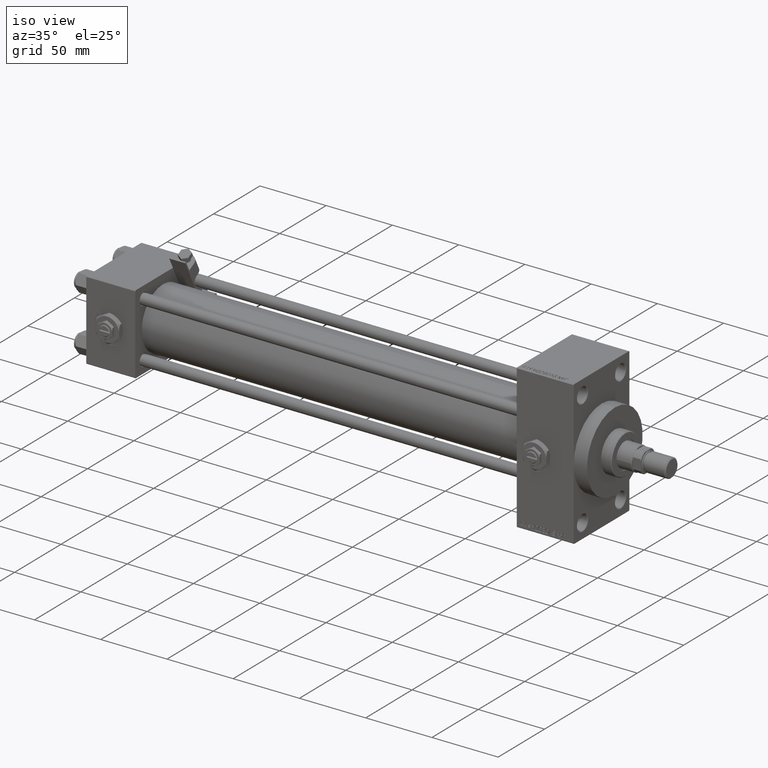
[diagram: clean part render]
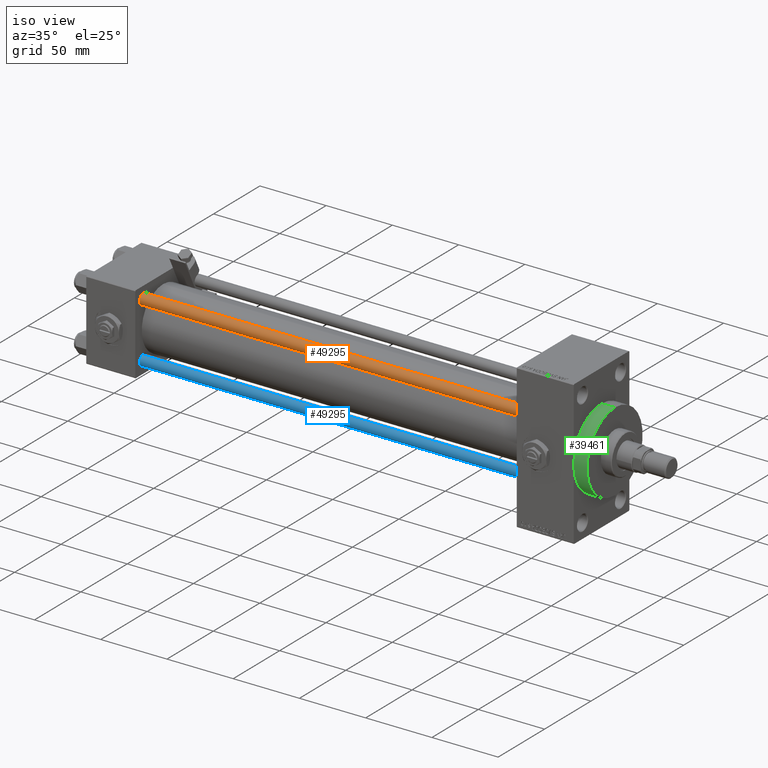
[diagram: same view with three faces highlighted in distinct colors, each labeled with its STEP entity id]
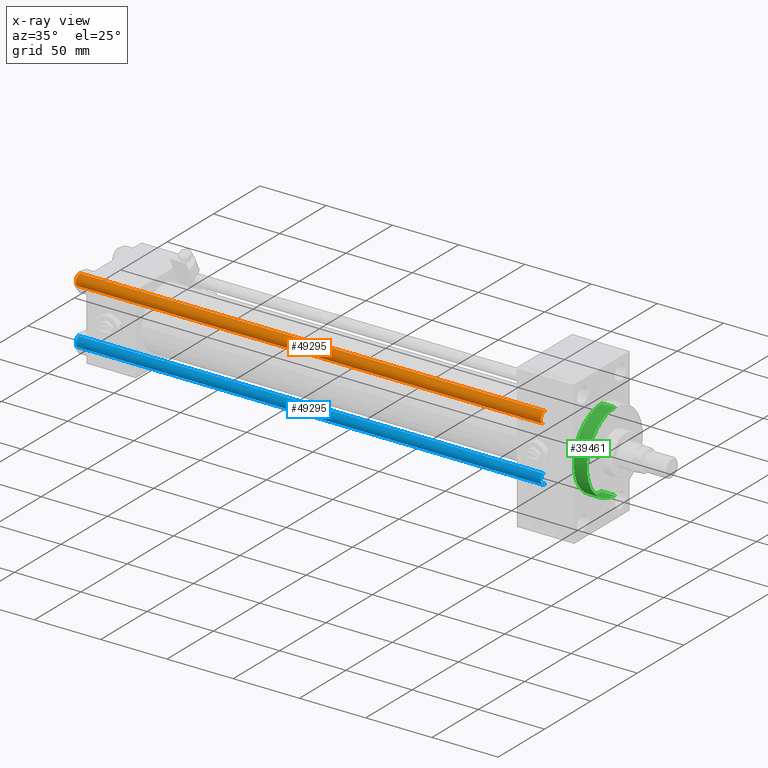
[diagram: x-ray of the same camera — body ghosted, the three highlighted faces saturated]
A machine part, iso view with three faces highlighted in distinct colors.
The next image is the same camera in x-ray (body ghosted, the three faces saturated) — at least one of them is partly hidden behind the body in this view.
Their STEP definitions:

[orange] entity #49295 — the highlighted cylindrical surface (edge-blend (fillet) strip) has radius 4 mm, axis along (1, 0, 0).
#688 = CIRCLE ( 'NONE', #17104, 4.000000000000000000 ) ;
#2502 = CARTESIAN_POINT ( 'NONE',  ( -4.000000000000000000, 0.000000000000000000, 0.5000000000000004441 ) ) ;
#3554 = VECTOR ( 'NONE', #43701, 1000.000000000000000 ) ;
#3644 = EDGE_CURVE ( 'NONE', #37329, #42022, #10613, .T. ) ;
#4124 = CARTESIAN_POINT ( 'NONE',  ( -4.000000000000000000, 0.000000000000000000, 352.0000000000000000 ) ) ;
#6484 = CARTESIAN_POINT ( 'NONE',  ( 4.000000000000000000, 4.898587196589412829E-16, 352.0000000000000000 ) ) ;
#9136 = CARTESIAN_POINT ( 'NONE',  ( 4.000000000000000000, 4.898587196589412829E-16, 0.5000000000000004441 ) ) ;
#9385 = DIRECTION ( 'NONE',  ( -0.000000000000000000, -0.000000000000000000, 1.000000000000000000 ) ) ;
#10183 = DIRECTION ( 'NONE',  ( -0.000000000000000000, -0.000000000000000000, -1.000000000000000000 ) ) ;
#10613 = LINE ( 'NONE', #6484, #14431 ) ;
#13238 = CARTESIAN_POINT ( 'NONE',  ( 0.000000000000000000, 0.000000000000000000, 0.5000000000000004441 ) ) ;
#13780 = DIRECTION ( 'NONE',  ( -1.000000000000000000, 0.000000000000000000, 0.000000000000000000 ) ) ;
#14431 = VECTOR ( 'NONE', #22177, 1000.000000000000000 ) ;
#14566 = VERTEX_POINT ( 'NONE', #24921 ) ;
#17104 = AXIS2_PLACEMENT_3D ( 'NONE', #13238, #9385, #40724 ) ;
#17686 = CIRCLE ( 'NONE', #39842, 4.000000000000000000 ) ;
#18154 = EDGE_LOOP ( 'NONE', ( #30466, #29883, #42792, #40433 ) ) ;
#18305 = DIRECTION ( 'NONE',  ( 1.000000000000000000, 0.000000000000000000, 0.000000000000000000 ) ) ;
#18810 = DIRECTION ( 'NONE',  ( 0.000000000000000000, 0.000000000000000000, -1.000000000000000000 ) ) ;
#19573 = LINE ( 'NONE', #4124, #3554 ) ;
#19620 = VERTEX_POINT ( 'NONE', #2502 ) ;
#22177 = DIRECTION ( 'NONE',  ( -0.000000000000000000, -0.000000000000000000, -1.000000000000000000 ) ) ;
#23241 = AXIS2_PLACEMENT_3D ( 'NONE', #41011, #10183, #13780 ) ;
#24007 = EDGE_CURVE ( 'NONE', #14566, #19620, #19573, .T. ) ;
#24820 = EDGE_CURVE ( 'NONE', #14566, #37329, #17686, .T. ) ;
#24921 = CARTESIAN_POINT ( 'NONE',  ( -4.000000000000000000, 0.000000000000000000, 351.5000000000000000 ) ) ;
#26256 = CARTESIAN_POINT ( 'NONE',  ( 4.000000000000000000, 4.898587196589412829E-16, 351.5000000000000000 ) ) ;
#29195 = FACE_OUTER_BOUND ( 'NONE', #18154, .T. ) ;
#29883 = ORIENTED_EDGE ( 'NONE', *, *, #3644, .T. ) ;
#30466 = ORIENTED_EDGE ( 'NONE', *, *, #24820, .T. ) ;
#31787 = EDGE_CURVE ( 'NONE', #42022, #19620, #688, .T. ) ;
#33054 = CYLINDRICAL_SURFACE ( 'NONE', #23241, 4.000000000000000000 ) ;
#37329 = VERTEX_POINT ( 'NONE', #26256 ) ;
#39842 = AXIS2_PLACEMENT_3D ( 'NONE', #42442, #18810, #18305 ) ;
#40433 = ORIENTED_EDGE ( 'NONE', *, *, #24007, .F. ) ;
#40724 = DIRECTION ( 'NONE',  ( 1.000000000000000000, 0.000000000000000000, 0.000000000000000000 ) ) ;
#41011 = CARTESIAN_POINT ( 'NONE',  ( 0.000000000000000000, 0.000000000000000000, 352.0000000000000000 ) ) ;
#42022 = VERTEX_POINT ( 'NONE', #9136 ) ;
#42442 = CARTESIAN_POINT ( 'NONE',  ( 0.000000000000000000, 0.000000000000000000, 351.5000000000000000 ) ) ;
#42792 = ORIENTED_EDGE ( 'NONE', *, *, #31787, .T. ) ;
#43701 = DIRECTION ( 'NONE',  ( -0.000000000000000000, -0.000000000000000000, -1.000000000000000000 ) ) ;
#49295 = ADVANCED_FACE ( 'NONE', ( #29195 ), #33054, .T. ) ;

[blue] entity #49295 — the highlighted cylindrical surface (edge-blend (fillet) strip) has radius 4 mm, axis along (-1, 0, 0).
#688 = CIRCLE ( 'NONE', #17104, 4.000000000000000000 ) ;
#2502 = CARTESIAN_POINT ( 'NONE',  ( -4.000000000000000000, 0.000000000000000000, 0.5000000000000004441 ) ) ;
#3554 = VECTOR ( 'NONE', #43701, 1000.000000000000000 ) ;
#3644 = EDGE_CURVE ( 'NONE', #37329, #42022, #10613, .T. ) ;
#4124 = CARTESIAN_POINT ( 'NONE',  ( -4.000000000000000000, 0.000000000000000000, 352.0000000000000000 ) ) ;
#6484 = CARTESIAN_POINT ( 'NONE',  ( 4.000000000000000000, 4.898587196589412829E-16, 352.0000000000000000 ) ) ;
#9136 = CARTESIAN_POINT ( 'NONE',  ( 4.000000000000000000, 4.898587196589412829E-16, 0.5000000000000004441 ) ) ;
#9385 = DIRECTION ( 'NONE',  ( -0.000000000000000000, -0.000000000000000000, 1.000000000000000000 ) ) ;
#10183 = DIRECTION ( 'NONE',  ( -0.000000000000000000, -0.000000000000000000, -1.000000000000000000 ) ) ;
#10613 = LINE ( 'NONE', #6484, #14431 ) ;
#13238 = CARTESIAN_POINT ( 'NONE',  ( 0.000000000000000000, 0.000000000000000000, 0.5000000000000004441 ) ) ;
#13780 = DIRECTION ( 'NONE',  ( -1.000000000000000000, 0.000000000000000000, 0.000000000000000000 ) ) ;
#14431 = VECTOR ( 'NONE', #22177, 1000.000000000000000 ) ;
#14566 = VERTEX_POINT ( 'NONE', #24921 ) ;
#17104 = AXIS2_PLACEMENT_3D ( 'NONE', #13238, #9385, #40724 ) ;
#17686 = CIRCLE ( 'NONE', #39842, 4.000000000000000000 ) ;
#18154 = EDGE_LOOP ( 'NONE', ( #30466, #29883, #42792, #40433 ) ) ;
#18305 = DIRECTION ( 'NONE',  ( 1.000000000000000000, 0.000000000000000000, 0.000000000000000000 ) ) ;
#18810 = DIRECTION ( 'NONE',  ( 0.000000000000000000, 0.000000000000000000, -1.000000000000000000 ) ) ;
#19573 = LINE ( 'NONE', #4124, #3554 ) ;
#19620 = VERTEX_POINT ( 'NONE', #2502 ) ;
#22177 = DIRECTION ( 'NONE',  ( -0.000000000000000000, -0.000000000000000000, -1.000000000000000000 ) ) ;
#23241 = AXIS2_PLACEMENT_3D ( 'NONE', #41011, #10183, #13780 ) ;
#24007 = EDGE_CURVE ( 'NONE', #14566, #19620, #19573, .T. ) ;
#24820 = EDGE_CURVE ( 'NONE', #14566, #37329, #17686, .T. ) ;
#24921 = CARTESIAN_POINT ( 'NONE',  ( -4.000000000000000000, 0.000000000000000000, 351.5000000000000000 ) ) ;
#26256 = CARTESIAN_POINT ( 'NONE',  ( 4.000000000000000000, 4.898587196589412829E-16, 351.5000000000000000 ) ) ;
#29195 = FACE_OUTER_BOUND ( 'NONE', #18154, .T. ) ;
#29883 = ORIENTED_EDGE ( 'NONE', *, *, #3644, .T. ) ;
#30466 = ORIENTED_EDGE ( 'NONE', *, *, #24820, .T. ) ;
#31787 = EDGE_CURVE ( 'NONE', #42022, #19620, #688, .T. ) ;
#33054 = CYLINDRICAL_SURFACE ( 'NONE', #23241, 4.000000000000000000 ) ;
#37329 = VERTEX_POINT ( 'NONE', #26256 ) ;
#39842 = AXIS2_PLACEMENT_3D ( 'NONE', #42442, #18810, #18305 ) ;
#40433 = ORIENTED_EDGE ( 'NONE', *, *, #24007, .F. ) ;
#40724 = DIRECTION ( 'NONE',  ( 1.000000000000000000, 0.000000000000000000, 0.000000000000000000 ) ) ;
#41011 = CARTESIAN_POINT ( 'NONE',  ( 0.000000000000000000, 0.000000000000000000, 352.0000000000000000 ) ) ;
#42022 = VERTEX_POINT ( 'NONE', #9136 ) ;
#42442 = CARTESIAN_POINT ( 'NONE',  ( 0.000000000000000000, 0.000000000000000000, 351.5000000000000000 ) ) ;
#42792 = ORIENTED_EDGE ( 'NONE', *, *, #31787, .T. ) ;
#43701 = DIRECTION ( 'NONE',  ( -0.000000000000000000, -0.000000000000000000, -1.000000000000000000 ) ) ;
#49295 = ADVANCED_FACE ( 'NONE', ( #29195 ), #33054, .T. ) ;

[green] entity #39461 — the highlighted cylindrical surface (partial cylindrical patch) has radius 30 mm, axis along (-1, -0, -0).
#1476 = FACE_OUTER_BOUND ( 'NONE', #14858, .T. ) ;
#1777 = VECTOR ( 'NONE', #26782, 1000.000000000000000 ) ;
#1918 = ORIENTED_EDGE ( 'NONE', *, *, #18755, .T. ) ;
#2164 = AXIS2_PLACEMENT_3D ( 'NONE', #46066, #29383, #22690 ) ;
#4517 = EDGE_CURVE ( 'NONE', #7786, #33181, #10354, .T. ) ;
#5839 = DIRECTION ( 'NONE',  ( 1.000000000000000000, 0.000000000000000000, 0.000000000000000000 ) ) ;
#6096 = DIRECTION ( 'NONE',  ( -1.000000000000000000, -0.000000000000000000, -0.000000000000000000 ) ) ;
#7786 = VERTEX_POINT ( 'NONE', #17035 ) ;
#8257 = CARTESIAN_POINT ( 'NONE',  ( 377.9999999999999432, 3.673940397442059178E-15, -30.00000000000000000 ) ) ;
#8997 = DIRECTION ( 'NONE',  ( 1.000000000000000000, 0.000000000000000000, 0.000000000000000000 ) ) ;
#9364 = ORIENTED_EDGE ( 'NONE', *, *, #43062, .F. ) ;
#10045 = VERTEX_POINT ( 'NONE', #19721 ) ;
#10354 = CIRCLE ( 'NONE', #2164, 30.00000000000000000 ) ;
#12400 = CIRCLE ( 'NONE', #41113, 30.00000000000000000 ) ;
#13099 = DIRECTION ( 'NONE',  ( 0.000000000000000000, 0.000000000000000000, -1.000000000000000000 ) ) ;
#13559 = DIRECTION ( 'NONE',  ( 0.000000000000000000, 0.000000000000000000, -1.000000000000000000 ) ) ;
#14506 = EDGE_CURVE ( 'NONE', #33527, #45321, #30303, .T. ) ;
#14771 = ORIENTED_EDGE ( 'NONE', *, *, #14506, .T. ) ;
#14858 = EDGE_LOOP ( 'NONE', ( #9364, #15576, #43483, #1918, #14771 ) ) ;
#15576 = ORIENTED_EDGE ( 'NONE', *, *, #4517, .F. ) ;
#16423 = CYLINDRICAL_SURFACE ( 'NONE', #23039, 30.00000000000000000 ) ;
#17035 = CARTESIAN_POINT ( 'NONE',  ( 377.9999999999999432, 0.000000000000000000, 30.00000000000000000 ) ) ;
#17170 = CARTESIAN_POINT ( 'NONE',  ( 377.9999999999999432, 0.000000000000000000, 0.000000000000000000 ) ) ;
#18434 = LINE ( 'NONE', #25645, #41217 ) ;
#18493 = CARTESIAN_POINT ( 'NONE',  ( 367.9999999999999432, -30.00000000000000000, 0.000000000000000000 ) ) ;
#18552 = CARTESIAN_POINT ( 'NONE',  ( 377.9999999999999432, 3.673940397442059178E-15, -30.00000000000000000 ) ) ;
#18755 = EDGE_CURVE ( 'NONE', #10045, #33527, #12400, .T. ) ;
#19721 = CARTESIAN_POINT ( 'NONE',  ( 367.9999999999999432, 0.000000000000000000, 30.00000000000000000 ) ) ;
#22690 = DIRECTION ( 'NONE',  ( 0.000000000000000000, 0.000000000000000000, -1.000000000000000000 ) ) ;
#23039 = AXIS2_PLACEMENT_3D ( 'NONE', #17170, #43893, #28484 ) ;
#25645 = CARTESIAN_POINT ( 'NONE',  ( 377.9999999999999432, 0.000000000000000000, 30.00000000000000000 ) ) ;
#26782 = DIRECTION ( 'NONE',  ( -1.000000000000000000, -0.000000000000000000, -0.000000000000000000 ) ) ;
#28484 = DIRECTION ( 'NONE',  ( 0.000000000000000000, 0.000000000000000000, 1.000000000000000000 ) ) ;
#29383 = DIRECTION ( 'NONE',  ( 1.000000000000000000, 0.000000000000000000, 0.000000000000000000 ) ) ;
#30303 = CIRCLE ( 'NONE', #49179, 30.00000000000000000 ) ;
#33181 = VERTEX_POINT ( 'NONE', #18552 ) ;
#33527 = VERTEX_POINT ( 'NONE', #18493 ) ;
#39461 = ADVANCED_FACE ( 'NONE', ( #1476 ), #16423, .T. ) ;
#40552 = CARTESIAN_POINT ( 'NONE',  ( 367.9999999999999432, 0.000000000000000000, 0.000000000000000000 ) ) ;
#41113 = AXIS2_PLACEMENT_3D ( 'NONE', #40552, #5839, #13559 ) ;
#41217 = VECTOR ( 'NONE', #6096, 1000.000000000000000 ) ;
#43062 = EDGE_CURVE ( 'NONE', #33181, #45321, #50652, .T. ) ;
#43483 = ORIENTED_EDGE ( 'NONE', *, *, #44448, .T. ) ;
#43893 = DIRECTION ( 'NONE',  ( -1.000000000000000000, -0.000000000000000000, -0.000000000000000000 ) ) ;
#44448 = EDGE_CURVE ( 'NONE', #7786, #10045, #18434, .T. ) ;
#45321 = VERTEX_POINT ( 'NONE', #46753 ) ;
#46066 = CARTESIAN_POINT ( 'NONE',  ( 377.9999999999999432, 0.000000000000000000, 0.000000000000000000 ) ) ;
#46753 = CARTESIAN_POINT ( 'NONE',  ( 367.9999999999999432, 3.673940397442059178E-15, -30.00000000000000000 ) ) ;
#49046 = CARTESIAN_POINT ( 'NONE',  ( 367.9999999999999432, 0.000000000000000000, 0.000000000000000000 ) ) ;
#49179 = AXIS2_PLACEMENT_3D ( 'NONE', #49046, #8997, #13099 ) ;
#50652 = LINE ( 'NONE', #8257, #1777 ) ;